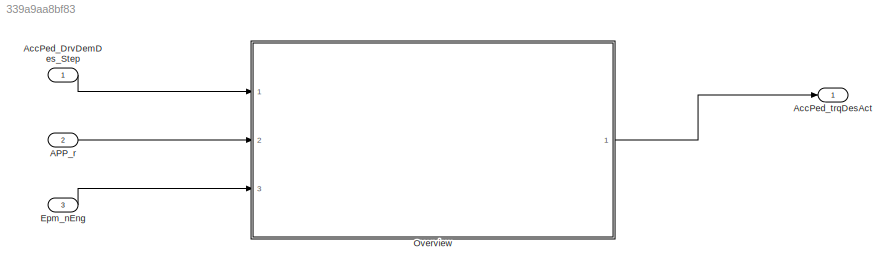
MODEL slx_339a9aa8bf83
KIND model
CONFIG AbsTol = auto
CONFIG EnableMultiTasking = off
CONFIG FixedStep = 0.001
CONFIG MaxStep = auto
CONFIG MinStep = auto
CONFIG RelTol = 1e-3
CONFIG SampleTimeConstraint = Unconstrained
CONFIG SolverName = FixedStepDiscrete
CONFIG StartTime = 0.0
CONFIG StopTime = Inf
BLOCK [Inport] APP_r
  Description = Acceleration pedal sensor 1 value after fault handling
  OutDataTypeStr = Percent
  OutMax = 100
  OutMin = 0
  Port = 2
  PortDimensions = [1 1]
  Unit = %
BLOCK [Inport] AccPed_DrvDemDes_Step
  OutputFunctionCall = on
BLOCK [Outport] AccPed_trqDesAct
  Description = driver torque raw of propulsion
  OutDataTypeStr = Torq
  OutMax = 3000
  OutMin = -3000
  PortDimensions = [1 1]
  Unit = Nm
  VectorParamsAs1DForOutWhenUnconnected = off
BLOCK [Inport] Epm_nEng
  Description = Engine speed
  OutDataTypeStr = ERPM
  OutMax = 6000
  OutMin = 0
  Port = 3
  PortDimensions = [1 1]
  Unit = rpm
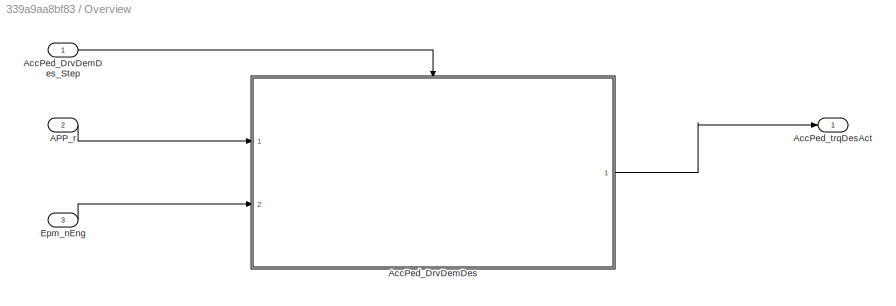
BLOCK [SubSystem] Overview
  Ports = [3, 1]
  RequestExecContextInheritance = off
BLOCK [Inport] Overview/APP_r
  Port = 2
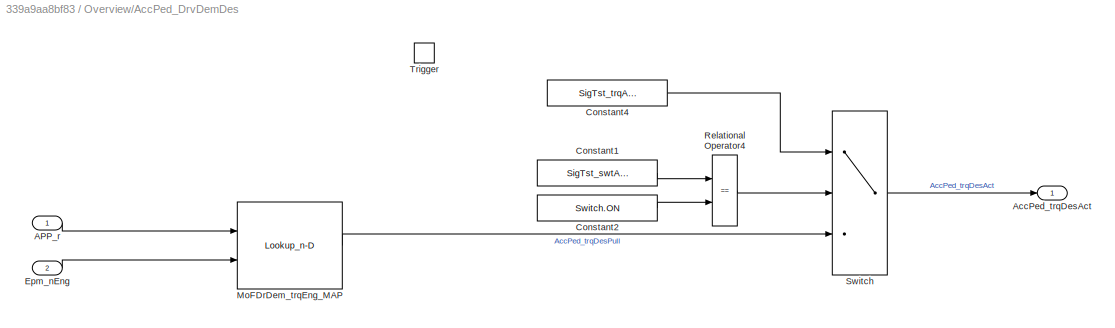
BLOCK [SubSystem] Overview/AccPed_DrvDemDes
  Ports = [2, 1, 0, 1]
  RequestExecContextInheritance = off
BLOCK [Inport] Overview/AccPed_DrvDemDes/APP_r
  Tag = %
BLOCK [Outport] Overview/AccPed_DrvDemDes/AccPed_trqDesAct
  Tag = Nm
  VectorParamsAs1DForOutWhenUnconnected = off
BLOCK [Constant] Overview/AccPed_DrvDemDes/Constant1
  Value = SigTst_swtAccPed_C
BLOCK [Constant] Overview/AccPed_DrvDemDes/Constant2
  OutDataTypeStr = Inherit: Inherit via back propagation
  Value = Switch.ON
BLOCK [Constant] Overview/AccPed_DrvDemDes/Constant4
  Value = SigTst_trqAccPed_C
BLOCK [Inport] Overview/AccPed_DrvDemDes/Epm_nEng
  Port = 2
  Tag = rpm
BLOCK [Lookup_n-D] Overview/AccPed_DrvDemDes/MoFDrDem_trqEng_MAP
  BeginIndexSearchUsingPreviousIndexResult = on
  BreakpointsForDimension1 = MoFDrDem_trqEng_MAPY
  BreakpointsForDimension2 = MoFDrDem_trqEng_MAPX
  ExtrapMethod = Clip
  IndexSearchMethod = Linear search
  InputPortMap = u0,u1
  InputSameDT = off
  InternalRulePriority = Speed
  OutDataTypeStr = Inherit: Inherit via back propagation
  Ports = [2, 1]
  SaturateOnIntegerOverflow = on
  Table = MoFDrDem_trqEng_MAP
  UseLastTableValue = on
BLOCK [RelationalOperator] Overview/AccPed_DrvDemDes/Relational Operator4
  Operator = ==
  OutDataTypeStr = boolean
  Ports = [2, 1]
  RndMeth = Simplest
BLOCK [Switch] Overview/AccPed_DrvDemDes/Switch
  Criteria = u2 ~= 0
  SaturateOnIntegerOverflow = off
BLOCK [TriggerPort] Overview/AccPed_DrvDemDes/Trigger
  PortDimensions = 1
  Ports = []
  StatesWhenEnabling = held
  TriggerType = function-call
  VariantControl = Variant
BLOCK [Inport] Overview/AccPed_DrvDemDes_Step
BLOCK [Outport] Overview/AccPed_trqDesAct
  VectorParamsAs1DForOutWhenUnconnected = off
BLOCK [Inport] Overview/Epm_nEng
  Port = 3
LINE APP_r:1 -> Overview:2
LINE AccPed_DrvDemDes_Step:1 -> Overview:1
LINE Epm_nEng:1 -> Overview:3
LINE Overview/APP_r:1 -> Overview/AccPed_DrvDemDes:1
LINE Overview/AccPed_DrvDemDes/APP_r:1 -> Overview/AccPed_DrvDemDes/MoFDrDem_trqEng_MAP:1
LINE Overview/AccPed_DrvDemDes/Constant1:1 -> Overview/AccPed_DrvDemDes/Relational Operator4:1
LINE Overview/AccPed_DrvDemDes/Constant2:1 -> Overview/AccPed_DrvDemDes/Relational Operator4:2
LINE Overview/AccPed_DrvDemDes/Constant4:1 -> Overview/AccPed_DrvDemDes/Switch:1
LINE Overview/AccPed_DrvDemDes/Epm_nEng:1 -> Overview/AccPed_DrvDemDes/MoFDrDem_trqEng_MAP:2
LINE Overview/AccPed_DrvDemDes/MoFDrDem_trqEng_MAP:1 -> Overview/AccPed_DrvDemDes/Switch:3
LINE Overview/AccPed_DrvDemDes/Relational Operator4:1 -> Overview/AccPed_DrvDemDes/Switch:2
LINE Overview/AccPed_DrvDemDes/Switch:1 -> Overview/AccPed_DrvDemDes/AccPed_trqDesAct:1
LINE Overview/AccPed_DrvDemDes:1 -> Overview/AccPed_trqDesAct:1
LINE Overview/AccPed_DrvDemDes_Step:1 -> Overview/AccPed_DrvDemDes:trigger
LINE Overview/Epm_nEng:1 -> Overview/AccPed_DrvDemDes:2
LINE Overview:1 -> AccPed_trqDesAct:1
